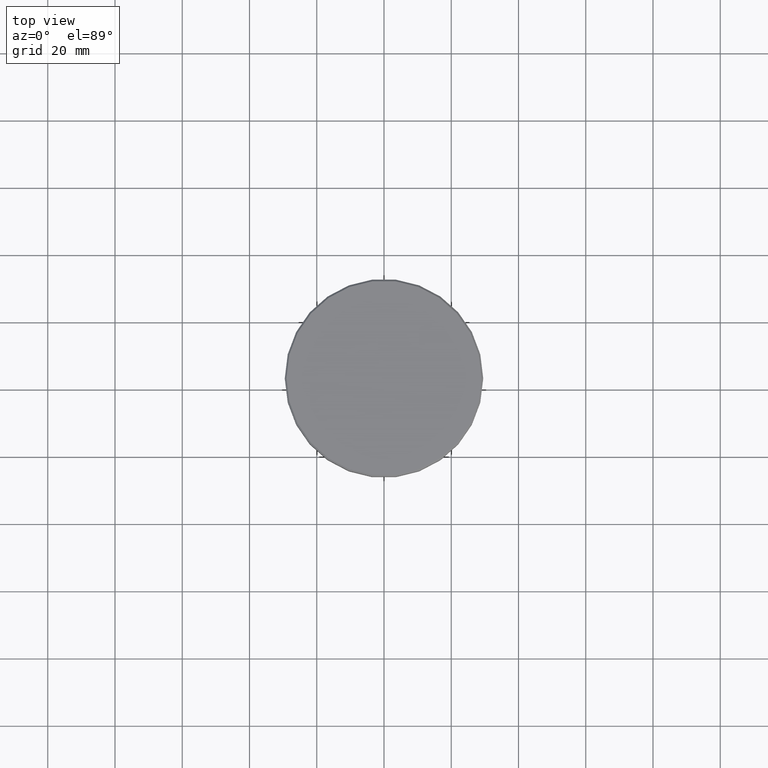
[diagram: clean part render]
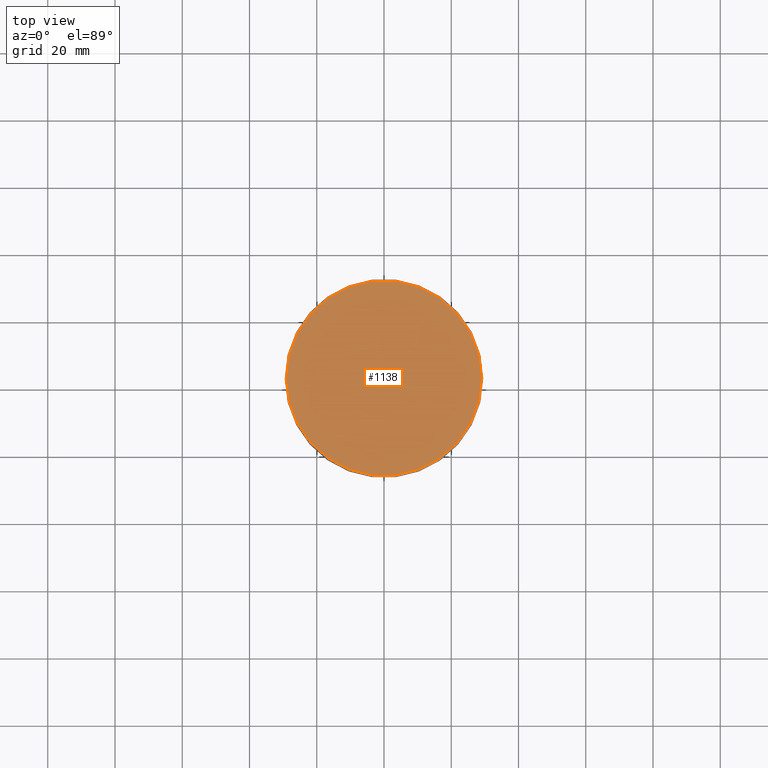
[diagram: same view with one face highlighted and labeled with its STEP entity id]
A machine part, top view. The second image highlights one B-rep face of the part: STEP entity #1138.
In plain terms, the highlighted planar face has unit normal (0, -0, 1).
Its self-contained STEP definition (entity closure, byte-faithful):
#43 = EDGE_CURVE ( 'NONE', #89, #797, #241, .T. ) ;
#74 = AXIS2_PLACEMENT_3D ( 'NONE', #213, #505, #316 ) ;
#89 = VERTEX_POINT ( 'NONE', #1010 ) ;
#98 = EDGE_LOOP ( 'NONE', ( #548, #215 ) ) ;
#135 = CIRCLE ( 'NONE', #74, 29.00000000000002487 ) ;
#213 = CARTESIAN_POINT ( 'NONE',  ( 0.000000000000000000, 0.000000000000000000, 0.000000000000000000 ) ) ;
#215 = ORIENTED_EDGE ( 'NONE', *, *, #641, .T. ) ;
#241 = CIRCLE ( 'NONE', #382, 29.00000000000002487 ) ;
#255 = DIRECTION ( 'NONE',  ( 0.000000000000000000, -0.000000000000000000, 1.000000000000000000 ) ) ;
#284 = AXIS2_PLACEMENT_3D ( 'NONE', #603, #255, #786 ) ;
#316 = DIRECTION ( 'NONE',  ( 1.000000000000000000, 0.000000000000000000, 0.000000000000000000 ) ) ;
#382 = AXIS2_PLACEMENT_3D ( 'NONE', #719, #484, #674 ) ;
#484 = DIRECTION ( 'NONE',  ( -0.000000000000000000, -0.000000000000000000, 1.000000000000000000 ) ) ;
#505 = DIRECTION ( 'NONE',  ( -0.000000000000000000, -0.000000000000000000, 1.000000000000000000 ) ) ;
#528 = FACE_OUTER_BOUND ( 'NONE', #98, .T. ) ;
#548 = ORIENTED_EDGE ( 'NONE', *, *, #43, .T. ) ;
#603 = CARTESIAN_POINT ( 'NONE',  ( 0.000000000000000000, 0.000000000000000000, 0.000000000000000000 ) ) ;
#641 = EDGE_CURVE ( 'NONE', #797, #89, #135, .T. ) ;
#674 = DIRECTION ( 'NONE',  ( 1.000000000000000000, 0.000000000000000000, 0.000000000000000000 ) ) ;
#679 = CARTESIAN_POINT ( 'NONE',  ( 29.00000000000002487, 3.582091887506009394E-15, 0.000000000000000000 ) ) ;
#719 = CARTESIAN_POINT ( 'NONE',  ( 0.000000000000000000, 0.000000000000000000, 0.000000000000000000 ) ) ;
#786 = DIRECTION ( 'NONE',  ( 1.000000000000000000, 0.000000000000000000, 0.000000000000000000 ) ) ;
#795 = PLANE ( 'NONE',  #284 ) ;
#797 = VERTEX_POINT ( 'NONE', #679 ) ;
#1010 = CARTESIAN_POINT ( 'NONE',  ( -29.00000000000002487, 0.000000000000000000, 0.000000000000000000 ) ) ;
#1138 = ADVANCED_FACE ( 'NONE', ( #528 ), #795, .T. ) ;